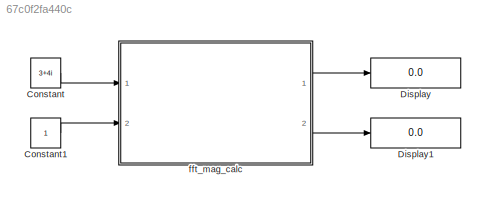
MODEL slx_67c0f2fa440c
KIND model
CONFIG AbsTol = auto
CONFIG EnableMultiTasking = off
CONFIG FixedStep = auto
CONFIG MaxStep = auto
CONFIG MinStep = auto
CONFIG RelTol = 1e-3
CONFIG SampleTimeConstraint = Unconstrained
CONFIG Solver = VariableStepAuto
CONFIG SolverName = VariableStepAuto
CONFIG StartTime = 0.0
CONFIG StopTime = 10.0
BLOCK [Constant] Constant
  OutDataTypeStr = fixdt(1,32,15)
  SampleTime = 0.1
  Value = 3+4i
BLOCK [Constant] Constant1
  OutDataTypeStr = boolean
  SampleTime = 0.1
BLOCK [Display] Display
  Decimation = 1
  Ports = [1]
BLOCK [Display] Display1
  Decimation = 1
  Ports = [1]
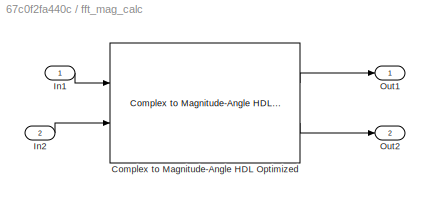
BLOCK [SubSystem] fft_mag_calc
  Ports = [2, 2]
  RequestExecContextInheritance = off
BLOCK [Reference] fft_mag_calc/Complex to Magnitude-Angle HDL Optimized  REF=dspmathops/Complex to Magnitude-Angle
HDL Optimized
  Ports = [2, 2]
  SourceBlock = dspmathops/Complex to Magnitude-Angle\nHDL Optimized
  SourceProductBaseCode = DS
  SourceProductName = DSP System Toolbox
  SourceType = Complex to Magnitude-Angle HDL Optimized
BLOCK [Inport] fft_mag_calc/In1
  IconDisplay = Port number
BLOCK [Inport] fft_mag_calc/In2
  IconDisplay = Port number
  Port = 2
BLOCK [Outport] fft_mag_calc/Out1
  IconDisplay = Port number
BLOCK [Outport] fft_mag_calc/Out2
  IconDisplay = Port number
  Port = 2
LINE Constant1:1 -> fft_mag_calc:2
LINE Constant:1 -> fft_mag_calc:1
LINE fft_mag_calc/Complex to Magnitude-Angle HDL Optimized:1 -> fft_mag_calc/Out1:1
LINE fft_mag_calc/Complex to Magnitude-Angle HDL Optimized:2 -> fft_mag_calc/Out2:1
LINE fft_mag_calc/In1:1 -> fft_mag_calc/Complex to Magnitude-Angle HDL Optimized:1
LINE fft_mag_calc/In2:1 -> fft_mag_calc/Complex to Magnitude-Angle HDL Optimized:2
LINE fft_mag_calc:1 -> Display:1
LINE fft_mag_calc:2 -> Display1:1
